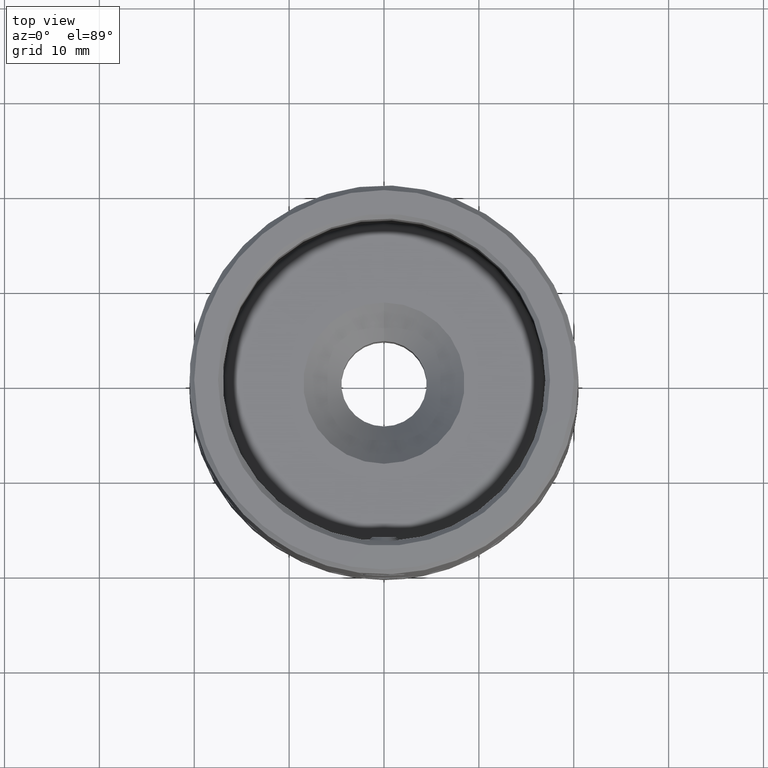
[diagram: clean part render]
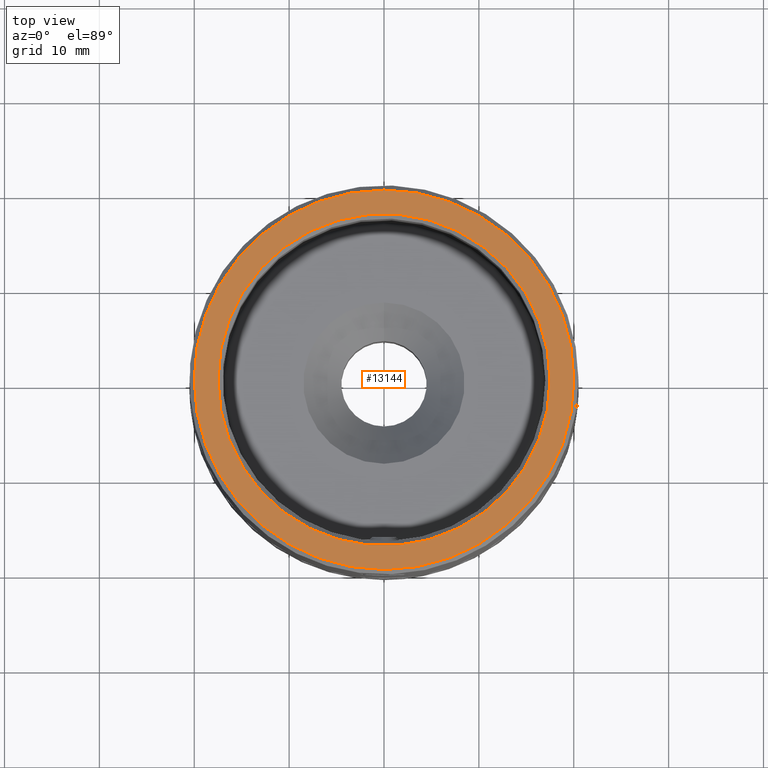
[diagram: same view with one face highlighted and labeled with its STEP entity id]
A machine part, top view. The second image highlights one B-rep face of the part: STEP entity #13144.
In plain terms, the highlighted planar face has unit normal (0, 0, 1).
Its self-contained STEP definition (entity closure, byte-faithful):
#91 = CARTESIAN_POINT ( 'NONE',  ( 17.49999999999998224, 0.000000000000000000, 30.00000000000000711 ) ) ;
#524 = PLANE ( 'NONE',  #5338 ) ;
#1314 = CARTESIAN_POINT ( 'NONE',  ( 0.000000000000000000, 0.000000000000000000, 30.00000000000000711 ) ) ;
#1443 = AXIS2_PLACEMENT_3D ( 'NONE', #1314, #10437, #15515 ) ;
#1717 = FACE_BOUND ( 'NONE', #9818, .T. ) ;
#1962 = DIRECTION ( 'NONE',  ( 1.000000000000000000, 0.000000000000000000, -0.000000000000000000 ) ) ;
#2303 = DIRECTION ( 'NONE',  ( -0.000000000000000000, -0.000000000000000000, -1.000000000000000000 ) ) ;
#4107 = VERTEX_POINT ( 'NONE', #91 ) ;
#4765 = CARTESIAN_POINT ( 'NONE',  ( 0.000000000000000000, 0.000000000000000000, 30.00000000000000711 ) ) ;
#5276 = CIRCLE ( 'NONE', #14592, 17.49999999999998224 ) ;
#5338 = AXIS2_PLACEMENT_3D ( 'NONE', #7015, #8320, #1962 ) ;
#6386 = CIRCLE ( 'NONE', #1443, 19.99999999999999645 ) ;
#7015 = CARTESIAN_POINT ( 'NONE',  ( 0.000000000000000000, 0.000000000000000000, 30.00000000000000711 ) ) ;
#7866 = EDGE_CURVE ( 'NONE', #4107, #4107, #5276, .T. ) ;
#8186 = ORIENTED_EDGE ( 'NONE', *, *, #7866, .T. ) ;
#8320 = DIRECTION ( 'NONE',  ( 0.000000000000000000, 0.000000000000000000, 1.000000000000000000 ) ) ;
#9818 = EDGE_LOOP ( 'NONE', ( #8186 ) ) ;
#9895 = DIRECTION ( 'NONE',  ( 1.000000000000000000, 0.000000000000000000, 0.000000000000000000 ) ) ;
#9976 = VERTEX_POINT ( 'NONE', #10521 ) ;
#10197 = FACE_OUTER_BOUND ( 'NONE', #10840, .T. ) ;
#10437 = DIRECTION ( 'NONE',  ( 0.000000000000000000, 0.000000000000000000, 1.000000000000000000 ) ) ;
#10521 = CARTESIAN_POINT ( 'NONE',  ( 19.99999999999999645, 0.000000000000000000, 30.00000000000000711 ) ) ;
#10840 = EDGE_LOOP ( 'NONE', ( #11988 ) ) ;
#10855 = EDGE_CURVE ( 'NONE', #9976, #9976, #6386, .T. ) ;
#11988 = ORIENTED_EDGE ( 'NONE', *, *, #10855, .T. ) ;
#13144 = ADVANCED_FACE ( 'NONE', ( #1717, #10197 ), #524, .T. ) ;
#14592 = AXIS2_PLACEMENT_3D ( 'NONE', #4765, #2303, #9895 ) ;
#15515 = DIRECTION ( 'NONE',  ( 1.000000000000000000, 0.000000000000000000, 0.000000000000000000 ) ) ;